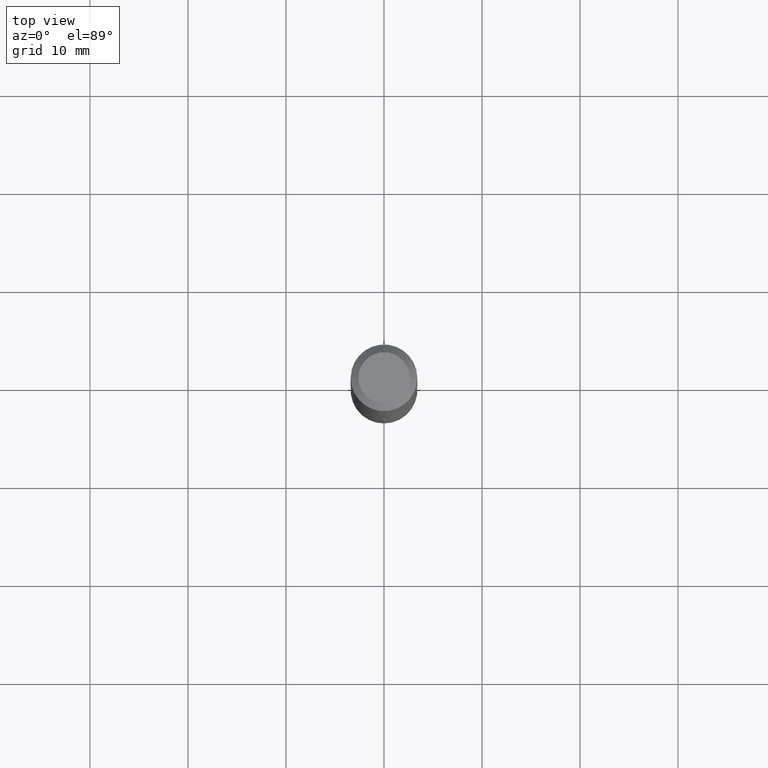
[diagram: clean part render]
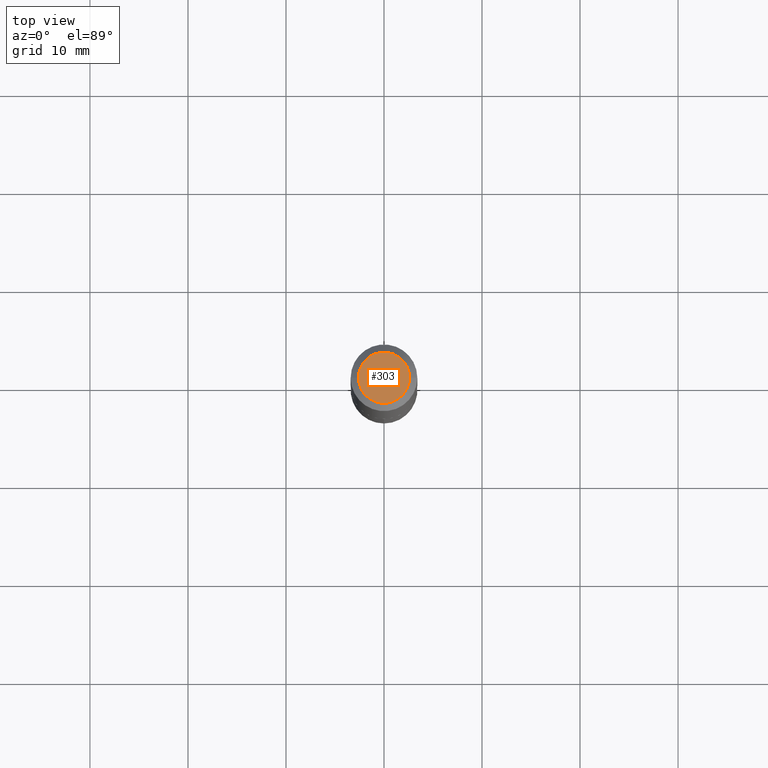
[diagram: same view with one face highlighted and labeled with its STEP entity id]
A machine part, top view. The second image highlights one B-rep face of the part: STEP entity #303.
In plain terms, the highlighted planar face has unit normal (0, -0, -1).
Its self-contained STEP definition (entity closure, byte-faithful):
#8 = CARTESIAN_POINT ( 'NONE',  ( -5.839929314523151101E-48, 8.337871319499049968E-34, 2.388061258337324511E-19 ) ) ;
#9 = VERTEX_POINT ( 'NONE', #143 ) ;
#14 = VERTEX_POINT ( 'NONE', #286 ) ;
#18 = EDGE_CURVE ( 'NONE', #14, #9, #90, .T. ) ;
#24 = PLANE ( 'NONE',  #183 ) ;
#66 = DIRECTION ( 'NONE',  ( 2.438088387897960049E-29, -3.491481338843145188E-15, -1.000000000000000000 ) ) ;
#69 = EDGE_LOOP ( 'NONE', ( #232, #349 ) ) ;
#71 = AXIS2_PLACEMENT_3D ( 'NONE', #8, #133, #269 ) ;
#83 = DIRECTION ( 'NONE',  ( 1.000000000000000000, -6.982962677686267499E-15, 4.876182450887182109E-29 ) ) ;
#84 = AXIS2_PLACEMENT_3D ( 'NONE', #327, #148, #83 ) ;
#90 = CIRCLE ( 'NONE', #71, 0.1025999999999999829 ) ;
#133 = DIRECTION ( 'NONE',  ( -2.445468806185136597E-29, 3.491481338843145583E-15, 1.000000000000000000 ) ) ;
#134 = EDGE_CURVE ( 'NONE', #9, #14, #388, .T. ) ;
#143 = CARTESIAN_POINT ( 'NONE',  ( -0.1025999999999999829, 7.710063666500343655E-16, 2.388061258285314772E-19 ) ) ;
#148 = DIRECTION ( 'NONE',  ( -2.445468806185136597E-29, 3.491481338843145583E-15, 1.000000000000000000 ) ) ;
#183 = AXIS2_PLACEMENT_3D ( 'NONE', #277, #66, #307 ) ;
#218 = FACE_OUTER_BOUND ( 'NONE', #69, .T. ) ;
#232 = ORIENTED_EDGE ( 'NONE', *, *, #134, .T. ) ;
#269 = DIRECTION ( 'NONE',  ( 1.000000000000000000, -6.982962677686267499E-15, 4.876182450887182109E-29 ) ) ;
#277 = CARTESIAN_POINT ( 'NONE',  ( -2.919964657261575550E-48, 4.168935659749524984E-34, 1.194030629168662255E-19 ) ) ;
#286 = CARTESIAN_POINT ( 'NONE',  ( 0.1025999999999999829, -8.656367717059636643E-16, 2.388061258392638663E-19 ) ) ;
#303 = ADVANCED_FACE ( 'NONE', ( #218 ), #24, .F. ) ;
#307 = DIRECTION ( 'NONE',  ( -1.000000000000000000, 6.982962677686265922E-15, -4.876176775795935793E-29 ) ) ;
#327 = CARTESIAN_POINT ( 'NONE',  ( -5.839929314523151101E-48, 8.337871319499049968E-34, 2.388061258337324511E-19 ) ) ;
#349 = ORIENTED_EDGE ( 'NONE', *, *, #18, .T. ) ;
#388 = CIRCLE ( 'NONE', #84, 0.1025999999999999829 ) ;